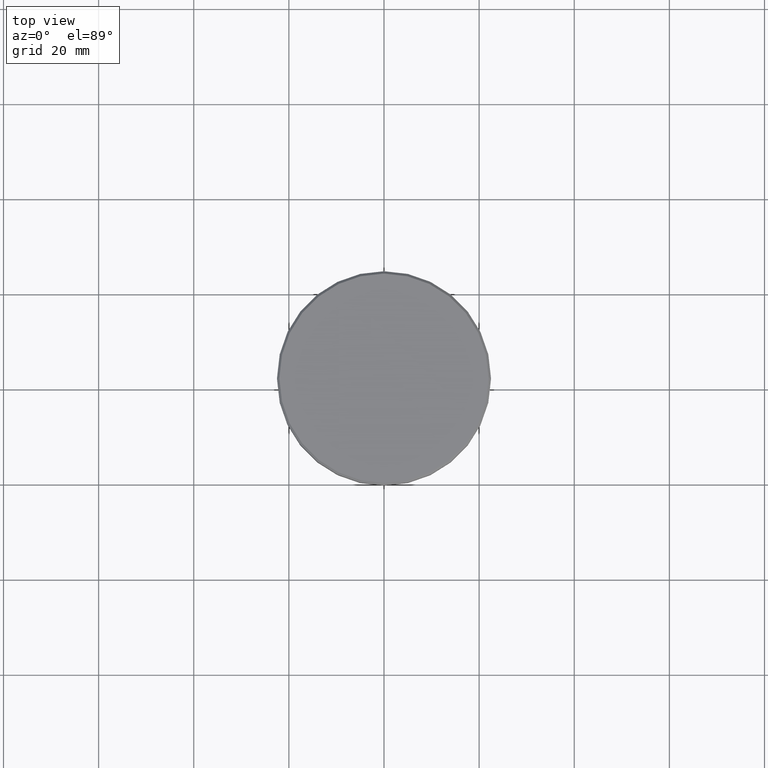
[diagram: clean part render]
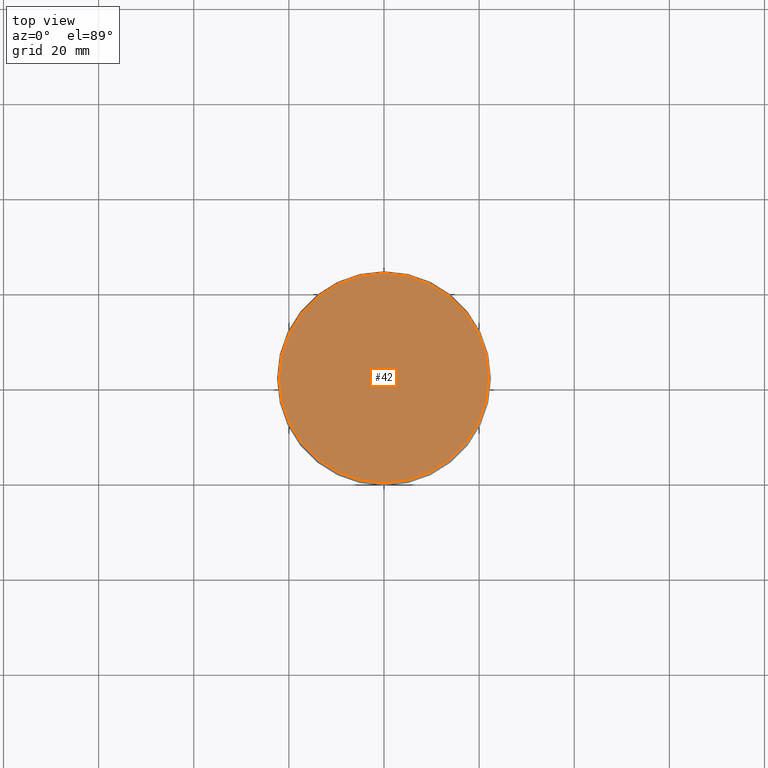
[diagram: same view with one face highlighted and labeled with its STEP entity id]
A machine part, top view. The second image highlights one B-rep face of the part: STEP entity #42.
In plain terms, the highlighted planar face has unit normal (0, -0, 1).
Its self-contained STEP definition (entity closure, byte-faithful):
#42 = ADVANCED_FACE ( 'NONE', ( #68 ), #79, .T. ) ;
#68 = FACE_OUTER_BOUND ( 'NONE', #83, .T. ) ;
#76 = CARTESIAN_POINT ( 'NONE',  ( 0.000000000000000000, 0.000000000000000000, 0.000000000000000000 ) ) ;
#79 = PLANE ( 'NONE',  #364 ) ;
#83 = EDGE_LOOP ( 'NONE', ( #574, #451 ) ) ;
#262 = CARTESIAN_POINT ( 'NONE',  ( -22.00000000000002132, 0.000000000000000000, 0.000000000000000000 ) ) ;
#353 = DIRECTION ( 'NONE',  ( 0.000000000000000000, -0.000000000000000000, 1.000000000000000000 ) ) ;
#364 = AXIS2_PLACEMENT_3D ( 'NONE', #76, #353, #810 ) ;
#385 = DIRECTION ( 'NONE',  ( -0.000000000000000000, -0.000000000000000000, 1.000000000000000000 ) ) ;
#451 = ORIENTED_EDGE ( 'NONE', *, *, #547, .T. ) ;
#471 = AXIS2_PLACEMENT_3D ( 'NONE', #559, #385, #1089 ) ;
#499 = VERTEX_POINT ( 'NONE', #1150 ) ;
#542 = CIRCLE ( 'NONE', #870, 22.00000000000002132 ) ;
#547 = EDGE_CURVE ( 'NONE', #499, #590, #542, .T. ) ;
#559 = CARTESIAN_POINT ( 'NONE',  ( 0.000000000000000000, 0.000000000000000000, 0.000000000000000000 ) ) ;
#574 = ORIENTED_EDGE ( 'NONE', *, *, #1016, .T. ) ;
#590 = VERTEX_POINT ( 'NONE', #262 ) ;
#751 = DIRECTION ( 'NONE',  ( 1.000000000000000000, 0.000000000000000000, 0.000000000000000000 ) ) ;
#761 = CARTESIAN_POINT ( 'NONE',  ( 0.000000000000000000, 0.000000000000000000, 0.000000000000000000 ) ) ;
#810 = DIRECTION ( 'NONE',  ( 1.000000000000000000, 0.000000000000000000, 0.000000000000000000 ) ) ;
#870 = AXIS2_PLACEMENT_3D ( 'NONE', #761, #1021, #751 ) ;
#1016 = EDGE_CURVE ( 'NONE', #590, #499, #1049, .T. ) ;
#1021 = DIRECTION ( 'NONE',  ( -0.000000000000000000, -0.000000000000000000, 1.000000000000000000 ) ) ;
#1049 = CIRCLE ( 'NONE', #471, 22.00000000000002132 ) ;
#1089 = DIRECTION ( 'NONE',  ( 1.000000000000000000, 0.000000000000000000, 0.000000000000000000 ) ) ;
#1150 = CARTESIAN_POINT ( 'NONE',  ( 22.00000000000002132, 2.724839128102862174E-15, 0.000000000000000000 ) ) ;